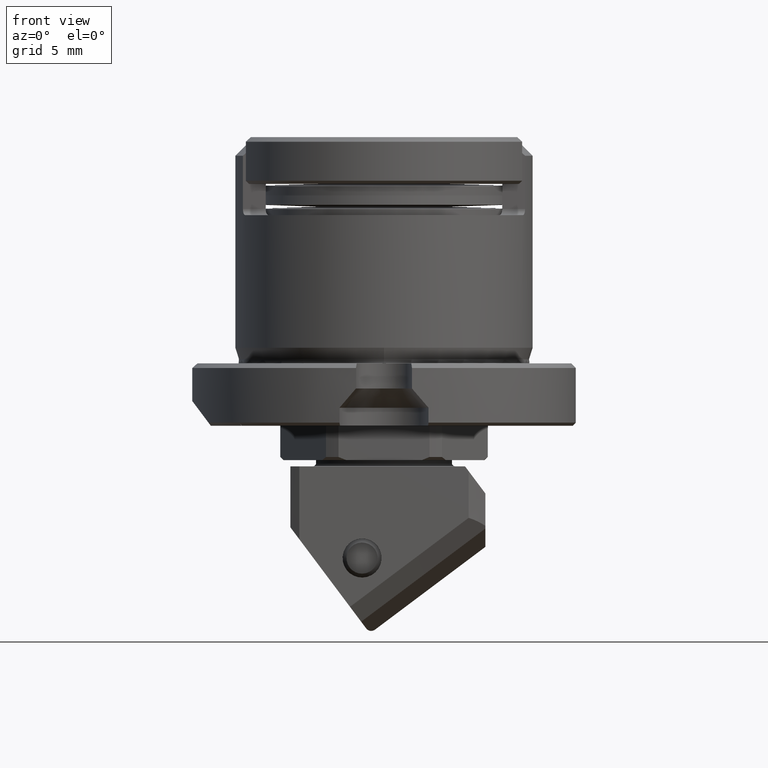
[diagram: clean part render]
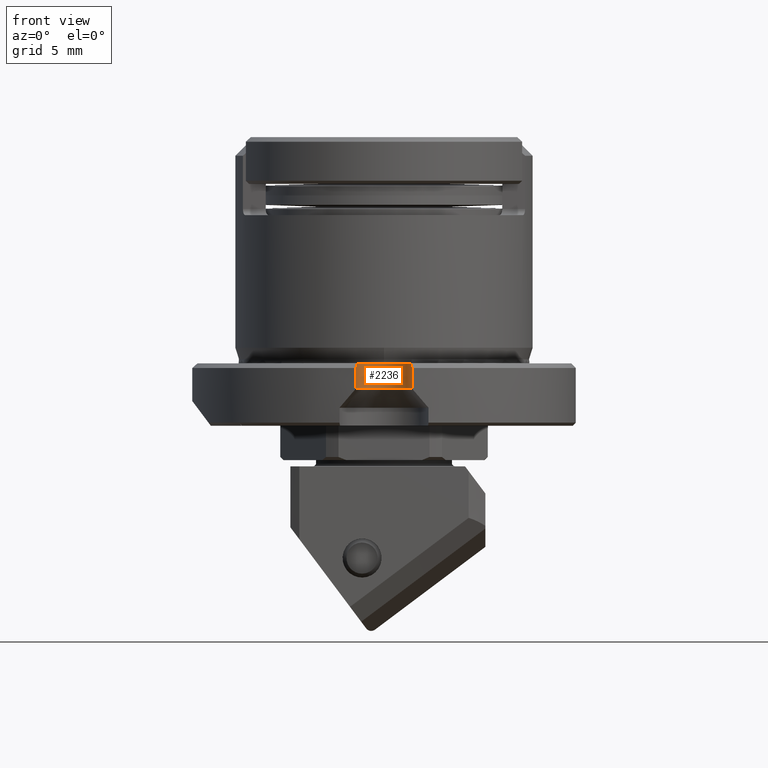
[diagram: same view with one face highlighted and labeled with its STEP entity id]
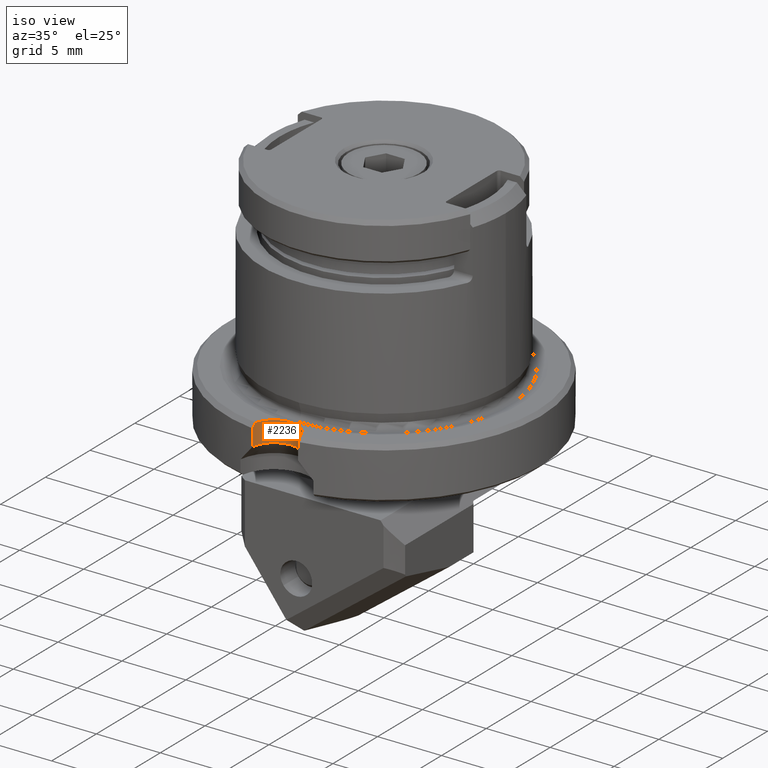
[diagram: same view with one face highlighted and labeled with its STEP entity id]
A machine part, front view. The second image highlights one B-rep face of the part: STEP entity #2236.
A second angle (iso view) of the same face is appended — the face is thin or edge-on in the first view.
In plain terms, the highlighted cylindrical surface (edge-blend (fillet) strip) has radius 1.8 mm, axis along (0, 0, 1).
Its self-contained STEP definition (entity closure, byte-faithful):
#433=B_SPLINE_CURVE_WITH_KNOTS('',3,(#29138,#29139,#29140,#29141,#29142,
#29143),.UNSPECIFIED.,.F.,.F.,(4,1,1,4),(0.,0.3333333333333,0.6666666666667,
1.),.UNSPECIFIED.);
#442=B_SPLINE_CURVE_WITH_KNOTS('',3,(#29235,#29236,#29237,#29238,#29239,
#29240),.UNSPECIFIED.,.F.,.F.,(4,1,1,4),(0.,0.3333333333333,0.6666666666667,
1.),.UNSPECIFIED.);
#443=B_SPLINE_CURVE_WITH_KNOTS('',3,(#29244,#29245,#29246,#29247,#29248,
#29249),.UNSPECIFIED.,.F.,.F.,(4,1,1,4),(0.,0.3333333333333,0.6666666666667,
1.),.UNSPECIFIED.);
#444=B_SPLINE_CURVE_WITH_KNOTS('',3,(#29252,#29253,#29254,#29255,#29256,
#29257),.UNSPECIFIED.,.F.,.F.,(4,1,1,4),(0.,0.3333333333333,0.6666666666667,
1.),.UNSPECIFIED.);
#538=CYLINDRICAL_SURFACE('',#19083,1.8);
#1287=FACE_OUTER_BOUND('',#3941,.T.);
#2236=ADVANCED_FACE('',(#1287),#538,.F.);
#3941=EDGE_LOOP('',(#8856,#8857,#8858,#8859,#8860,#8861,#8862,#8863,#8864,
#8865));
#4566=CIRCLE('',#19078,1.8);
#4567=CIRCLE('',#19079,1.8);
#4568=CIRCLE('',#19081,1.8);
#4569=CIRCLE('',#19082,1.8);
#8856=ORIENTED_EDGE('',*,*,#13543,.F.);
#8857=ORIENTED_EDGE('',*,*,#13544,.F.);
#8858=ORIENTED_EDGE('',*,*,#13545,.T.);
#8859=ORIENTED_EDGE('',*,*,#13546,.T.);
#8860=ORIENTED_EDGE('',*,*,#13517,.T.);
#8861=ORIENTED_EDGE('',*,*,#13547,.T.);
#8862=ORIENTED_EDGE('',*,*,#13548,.F.);
#8863=ORIENTED_EDGE('',*,*,#13371,.F.);
#8864=ORIENTED_EDGE('',*,*,#13542,.T.);
#8865=ORIENTED_EDGE('',*,*,#13541,.T.);
#11042=VERTEX_POINT('',#28662);
#11043=VERTEX_POINT('',#28664);
#11133=VERTEX_POINT('',#29137);
#11134=VERTEX_POINT('',#29144);
#11149=VERTEX_POINT('',#29228);
#11150=VERTEX_POINT('',#29230);
#11151=VERTEX_POINT('',#29234);
#11152=VERTEX_POINT('',#29241);
#11153=VERTEX_POINT('',#29243);
#11154=VERTEX_POINT('',#29251);
#13371=EDGE_CURVE('',#11042,#11043,#15387,.T.);
#13517=EDGE_CURVE('',#11134,#11133,#433,.T.);
#13541=EDGE_CURVE('',#11150,#11149,#4566,.T.);
#13542=EDGE_CURVE('',#11042,#11150,#4567,.T.);
#13543=EDGE_CURVE('',#11151,#11149,#15447,.T.);
#13544=EDGE_CURVE('',#11152,#11151,#442,.T.);
#13545=EDGE_CURVE('',#11152,#11153,#4568,.T.);
#13546=EDGE_CURVE('',#11153,#11134,#443,.T.);
#13547=EDGE_CURVE('',#11133,#11154,#4569,.T.);
#13548=EDGE_CURVE('',#11043,#11154,#444,.T.);
#15387=LINE('',#28663,#17230);
#15447=LINE('',#29233,#17290);
#17230=VECTOR('',#23081,1.);
#17290=VECTOR('',#23421,1.);
#19078=AXIS2_PLACEMENT_3D('',#29229,#23415,#23416);
#19079=AXIS2_PLACEMENT_3D('',#29231,#23417,#23418);
#19081=AXIS2_PLACEMENT_3D('',#29242,#23422,#23423);
#19082=AXIS2_PLACEMENT_3D('',#29250,#23424,#23425);
#19083=AXIS2_PLACEMENT_3D('',#29258,#23426,#23427);
#23081=DIRECTION('',(2.60548261965206E-9,3.95020231245309E-7,0.999999999999922));
#23415=DIRECTION('',(0.,0.,-1.));
#23416=DIRECTION('',(0.,1.,0.));
#23417=DIRECTION('',(0.,0.,-1.));
#23418=DIRECTION('',(-0.997315059433986,0.0732302685109393,0.));
#23421=DIRECTION('',(9.474700127584E-10,5.992064230064E-9,-1.));
#23422=DIRECTION('',(0.,0.,1.));
#23423=DIRECTION('',(0.971298773243603,0.237862761052401,0.));
#23424=DIRECTION('',(0.,0.,1.));
#23425=DIRECTION('',(-0.181582513269705,0.983375711960926,0.));
#23426=DIRECTION('',(0.,0.,1.));
#23427=DIRECTION('',(0.,-1.,0.));
#28662=CARTESIAN_POINT('',(-1.795167161953,-12.15818602979,-1.61335398208));
#28663=CARTESIAN_POINT('',(-1.795167161953,-12.15818602979,-1.61335398208));
#28664=CARTESIAN_POINT('',(-1.795167158531,-12.15818551099,-0.3000000019017));
#29137=CARTESIAN_POINT('',(-0.3268485238855,-10.51992371847,-8.126832540256E-13));
#29138=CARTESIAN_POINT('',(0.,-10.49000021185,-0.01103567898816));
#29139=CARTESIAN_POINT('',(-0.03659119211794,-10.49000021185,-0.01103567898816));
#29140=CARTESIAN_POINT('',(-0.1097258408847,-10.49223153456,-0.0102082244714));
#29141=CARTESIAN_POINT('',(-0.2189126199259,-10.50224280257,-0.006516270460899));
#29142=CARTESIAN_POINT('',(-0.2910228633657,-10.51330821829,-0.002435638258491));
#29143=CARTESIAN_POINT('',(-0.3268485660024,-10.519923514,-6.402662511285E-8));
#29144=CARTESIAN_POINT('',(0.,-10.49000021185,-0.01103567898816));
#29228=CARTESIAN_POINT('',(1.795167108784,-12.15818551641,-1.613353960688));
#29229=CARTESIAN_POINT('',(0.,-12.29,-1.613353962237));
#29230=CARTESIAN_POINT('',(0.,-10.49,-1.613353962237));
#29231=CARTESIAN_POINT('',(0.,-12.29,-1.613353962237));
#29233=CARTESIAN_POINT('',(1.795167107539,-12.15818552428,-0.2999999923587));
#29234=CARTESIAN_POINT('',(1.795167107539,-12.15818552428,-0.2999999923587));
#29235=CARTESIAN_POINT('',(1.748337741202,-11.86184704002,-2.423936088884E-9));
#29236=CARTESIAN_POINT('',(1.756282045099,-11.8942871437,-0.03325178505171));
#29237=CARTESIAN_POINT('',(1.770348989544,-11.95954218659,-0.09986246835905));
#29238=CARTESIAN_POINT('',(1.785973100793,-12.05839715906,-0.1999403848631));
#29239=CARTESIAN_POINT('',(1.792719260952,-12.12484856214,-0.2666630302741));
#29240=CARTESIAN_POINT('',(1.795167107539,-12.15818552428,-0.2999999923587));
#29241=CARTESIAN_POINT('',(1.748337741202,-11.86184704002,-2.423936088884E-9));
#29242=CARTESIAN_POINT('',(0.,-12.29,0.));
#29243=CARTESIAN_POINT('',(0.3268485238854,-10.51992371847,0.));
#29244=CARTESIAN_POINT('',(0.3268485051568,-10.51992371501,2.823294168082E-7));
#29245=CARTESIAN_POINT('',(0.2910227433197,-10.51330840955,-0.002435295401522));
#29246=CARTESIAN_POINT('',(0.2189125955492,-10.50224270539,-0.006517650343897));
#29247=CARTESIAN_POINT('',(0.1097259754153,-10.49223157179,-0.01020940629354));
#29248=CARTESIAN_POINT('',(0.03659125612745,-10.49000021185,-0.01103567898816));
#29249=CARTESIAN_POINT('',(0.,-10.49000021185,-0.01103567898816));
#29250=CARTESIAN_POINT('',(0.,-12.29,0.));
#29251=CARTESIAN_POINT('',(-1.748337791838,-11.86184703011,-3.996802888651E-13));
#29252=CARTESIAN_POINT('',(-1.795167158531,-12.15818551099,-0.3000000019017));
#29253=CARTESIAN_POINT('',(-1.792719313012,-12.12484856919,-0.2666630601288));
#29254=CARTESIAN_POINT('',(-1.785973083569,-12.05839714096,-0.1999404972575));
#29255=CARTESIAN_POINT('',(-1.770348951452,-11.9595420829,-0.09986261867795));
#29256=CARTESIAN_POINT('',(-1.756282099464,-11.89428715129,-0.03325178108751));
#29257=CARTESIAN_POINT('',(-1.748337794153,-11.86184703956,9.750678042764E-9));
#29258=CARTESIAN_POINT('',(0.,-12.29,-1.645621041482));